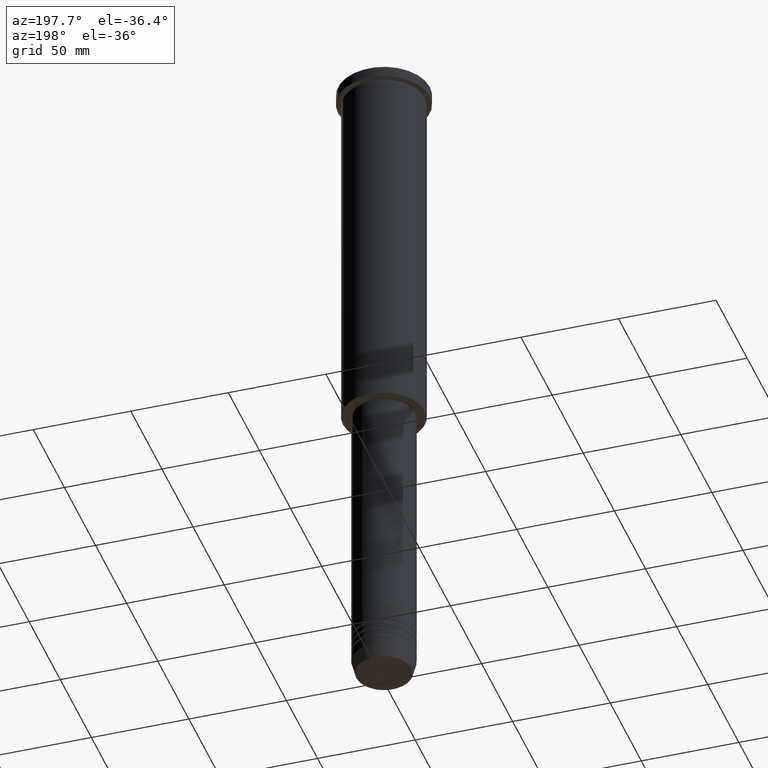
[diagram: clean part render]
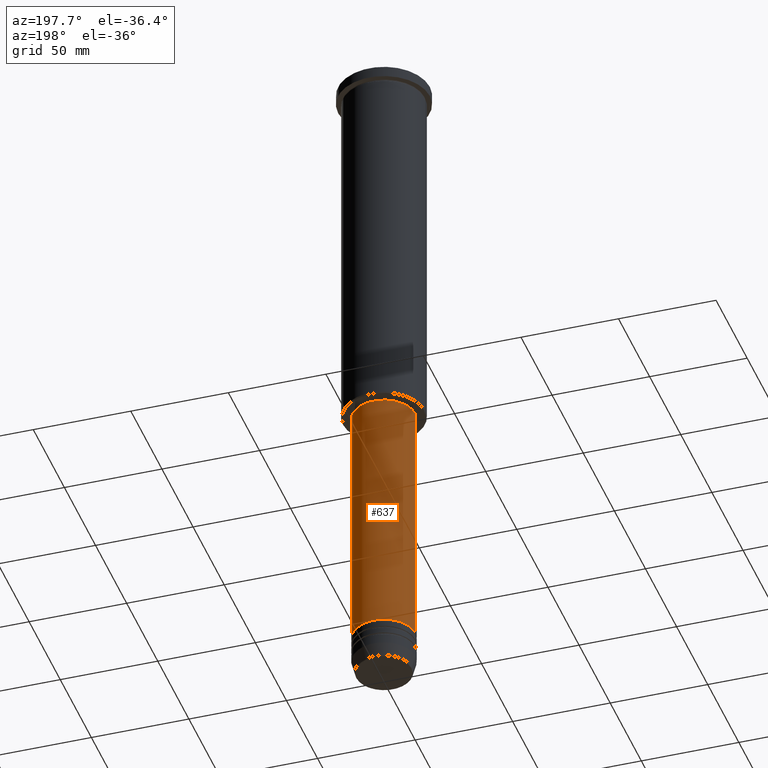
[diagram: same view with one face highlighted and labeled with its STEP entity id]
A machine part, auxiliary view. The second image highlights one B-rep face of the part: STEP entity #637.
In plain terms, the highlighted cylindrical surface (edge-blend (fillet) strip) has radius 16 mm, axis along (-0, -0, 1).
Its self-contained STEP definition (entity closure, byte-faithful):
#41 = CARTESIAN_POINT ( 'NONE',  ( 16.00000000000000000, 0.000000000000000000, 0.000000000000000000 ) ) ;
#81 = EDGE_CURVE ( 'NONE', #437, #835, #417, .T. ) ;
#131 = ORIENTED_EDGE ( 'NONE', *, *, #662, .F. ) ;
#155 = DIRECTION ( 'NONE',  ( 1.000000000000000000, 0.000000000000000000, 0.000000000000000000 ) ) ;
#177 = ORIENTED_EDGE ( 'NONE', *, *, #789, .T. ) ;
#188 = DIRECTION ( 'NONE',  ( -0.000000000000000000, -0.000000000000000000, 1.000000000000000000 ) ) ;
#244 = DIRECTION ( 'NONE',  ( -0.000000000000000000, -0.000000000000000000, 1.000000000000000000 ) ) ;
#265 = LINE ( 'NONE', #878, #432 ) ;
#270 = CARTESIAN_POINT ( 'NONE',  ( -16.00000000000000000, 1.959434878635765131E-15, -329.9999999999999432 ) ) ;
#284 = CARTESIAN_POINT ( 'NONE',  ( 16.00000000000000355, 0.000000000000000000, -196.9999999999999432 ) ) ;
#371 = CIRCLE ( 'NONE', #961, 16.00000000000000000 ) ;
#416 = VERTEX_POINT ( 'NONE', #270 ) ;
#417 = LINE ( 'NONE', #41, #495 ) ;
#432 = VECTOR ( 'NONE', #797, 1000.000000000000000 ) ;
#437 = VERTEX_POINT ( 'NONE', #1181 ) ;
#440 = DIRECTION ( 'NONE',  ( 1.000000000000000000, 0.000000000000000000, 0.000000000000000000 ) ) ;
#488 = EDGE_LOOP ( 'NONE', ( #177, #1117, #131, #1034 ) ) ;
#495 = VECTOR ( 'NONE', #1139, 1000.000000000000000 ) ;
#554 = CARTESIAN_POINT ( 'NONE',  ( 0.000000000000000000, 0.000000000000000000, -329.9999999999999432 ) ) ;
#637 = ADVANCED_FACE ( 'NONE', ( #1157 ), #784, .T. ) ;
#648 = DIRECTION ( 'NONE',  ( 1.000000000000000000, 0.000000000000000000, 0.000000000000000000 ) ) ;
#662 = EDGE_CURVE ( 'NONE', #835, #896, #724, .T. ) ;
#692 = CARTESIAN_POINT ( 'NONE',  ( 0.000000000000000000, 0.000000000000000000, -196.9999999999999432 ) ) ;
#704 = EDGE_CURVE ( 'NONE', #416, #896, #265, .T. ) ;
#717 = AXIS2_PLACEMENT_3D ( 'NONE', #1166, #771, #155 ) ;
#724 = CIRCLE ( 'NONE', #824, 16.00000000000000355 ) ;
#771 = DIRECTION ( 'NONE',  ( -0.000000000000000000, -0.000000000000000000, 1.000000000000000000 ) ) ;
#784 = CYLINDRICAL_SURFACE ( 'NONE', #717, 16.00000000000000000 ) ;
#789 = EDGE_CURVE ( 'NONE', #437, #416, #371, .T. ) ;
#797 = DIRECTION ( 'NONE',  ( -0.000000000000000000, -0.000000000000000000, 1.000000000000000000 ) ) ;
#801 = CARTESIAN_POINT ( 'NONE',  ( -16.00000000000000355, 1.959434878635765526E-15, -196.9999999999999432 ) ) ;
#824 = AXIS2_PLACEMENT_3D ( 'NONE', #692, #244, #440 ) ;
#835 = VERTEX_POINT ( 'NONE', #284 ) ;
#878 = CARTESIAN_POINT ( 'NONE',  ( -16.00000000000000000, 1.959434878635765131E-15, 0.000000000000000000 ) ) ;
#896 = VERTEX_POINT ( 'NONE', #801 ) ;
#961 = AXIS2_PLACEMENT_3D ( 'NONE', #554, #188, #648 ) ;
#1034 = ORIENTED_EDGE ( 'NONE', *, *, #81, .F. ) ;
#1117 = ORIENTED_EDGE ( 'NONE', *, *, #704, .T. ) ;
#1139 = DIRECTION ( 'NONE',  ( -0.000000000000000000, -0.000000000000000000, 1.000000000000000000 ) ) ;
#1157 = FACE_OUTER_BOUND ( 'NONE', #488, .T. ) ;
#1166 = CARTESIAN_POINT ( 'NONE',  ( 0.000000000000000000, 0.000000000000000000, 0.000000000000000000 ) ) ;
#1181 = CARTESIAN_POINT ( 'NONE',  ( 16.00000000000000000, 0.000000000000000000, -329.9999999999999432 ) ) ;